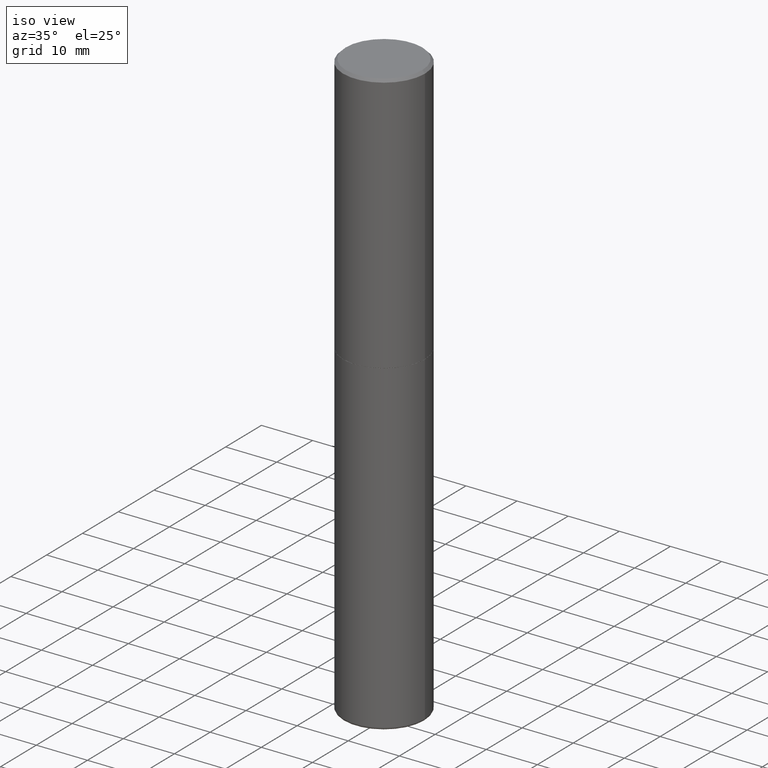
[diagram: clean part render]
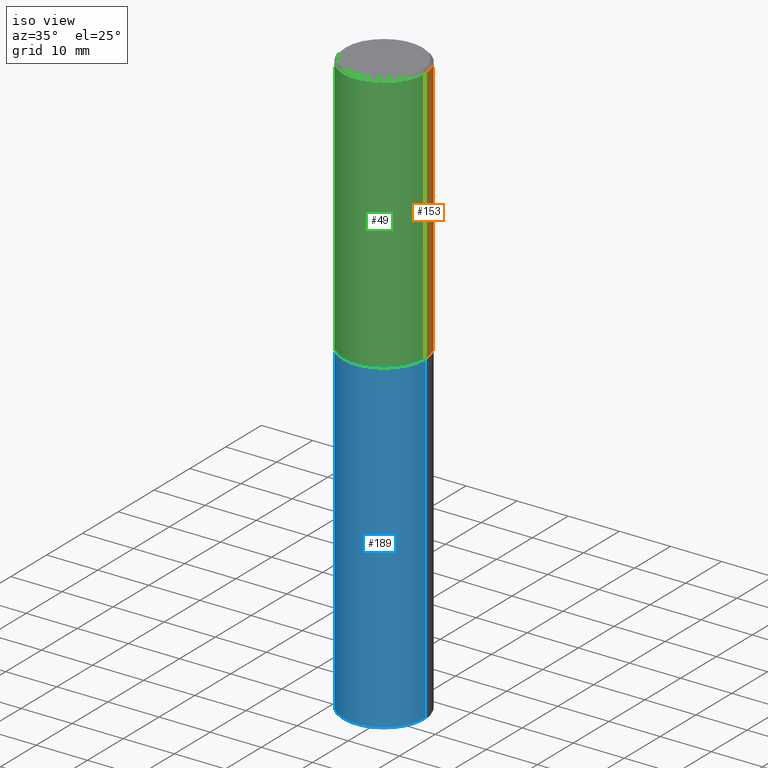
[diagram: same view with three faces highlighted in distinct colors, each labeled with its STEP entity id]
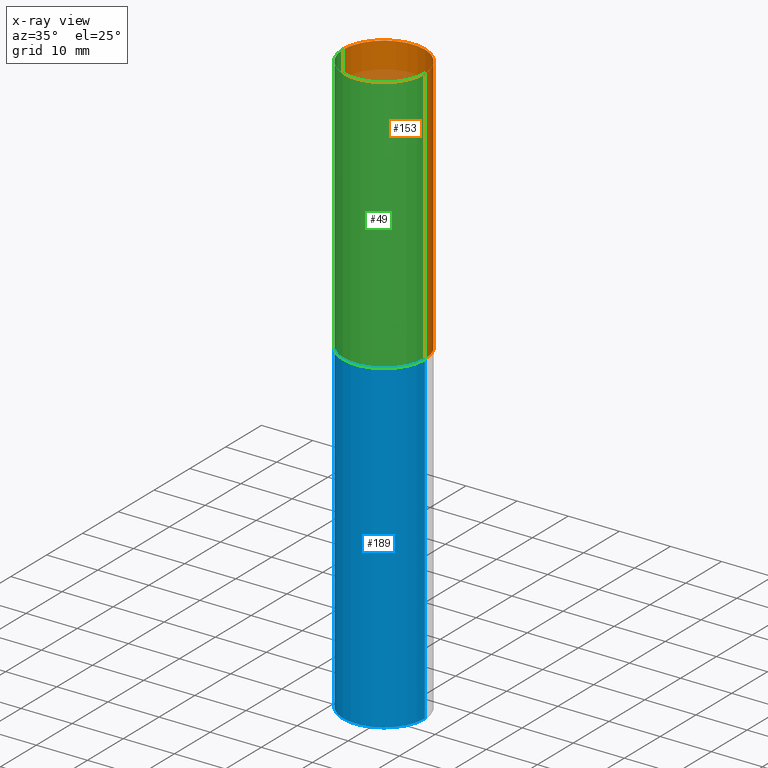
[diagram: x-ray of the same camera — body ghosted, the three highlighted faces saturated]
A machine part, iso view with three faces highlighted in distinct colors.
The next image is the same camera in x-ray (body ghosted, the three faces saturated) — at least one of them is partly hidden behind the body in this view.
Their STEP definitions:

[orange] entity #153 — the highlighted cylindrical surface (partial cylindrical patch) has radius 7.9997 mm, axis along (-0, 0, 1).
#6 = VERTEX_POINT ( 'NONE', #285 ) ;
#10 = AXIS2_PLACEMENT_3D ( 'NONE', #310, #337, #340 ) ;
#24 = DIRECTION ( 'NONE',  ( 1.000000000000000000, -6.982962677686265922E-15, 0.000000000000000000 ) ) ;
#44 = CIRCLE ( 'NONE', #10, 0.3149500000000002853 ) ;
#58 = AXIS2_PLACEMENT_3D ( 'NONE', #241, #85, #145 ) ;
#63 = ORIENTED_EDGE ( 'NONE', *, *, #315, .F. ) ;
#73 = LINE ( 'NONE', #333, #316 ) ;
#85 = DIRECTION ( 'NONE',  ( -2.445468806185136597E-29, 3.491481338843145583E-15, 1.000000000000000000 ) ) ;
#125 = ORIENTED_EDGE ( 'NONE', *, *, #390, .T. ) ;
#145 = DIRECTION ( 'NONE',  ( 1.000000000000000000, -6.982962677686266711E-15, 4.876176775795936353E-29 ) ) ;
#150 = DIRECTION ( 'NONE',  ( -2.445468806185136877E-29, 3.491481338843145188E-15, 1.000000000000000000 ) ) ;
#153 = ADVANCED_FACE ( 'NONE', ( #272 ), #271, .T. ) ;
#155 = VERTEX_POINT ( 'NONE', #418 ) ;
#167 = CARTESIAN_POINT ( 'NONE',  ( -0.3149499999999998967, 2.129454468560425784E-15, -0.02000000000000006981 ) ) ;
#171 = ORIENTED_EDGE ( 'NONE', *, *, #185, .F. ) ;
#185 = EDGE_CURVE ( 'NONE', #6, #395, #382, .T. ) ;
#200 = CARTESIAN_POINT ( 'NONE',  ( 0.3149499999999998967, -2.230543471175006266E-15, -0.02000000000000006981 ) ) ;
#204 = DIRECTION ( 'NONE',  ( -2.445468806185136597E-29, 3.491481338843145583E-15, 1.000000000000000000 ) ) ;
#206 = EDGE_CURVE ( 'NONE', #6, #155, #44, .T. ) ;
#241 = CARTESIAN_POINT ( 'NONE',  ( 0.000000000000000000, 0.000000000000000000, 0.000000000000000000 ) ) ;
#271 = CYLINDRICAL_SURFACE ( 'NONE', #58, 0.3149500000000000632 ) ;
#272 = FACE_OUTER_BOUND ( 'NONE', #360, .T. ) ;
#274 = CIRCLE ( 'NONE', #348, 0.3149499999999998967 ) ;
#285 = CARTESIAN_POINT ( 'NONE',  ( 0.3149500000000002853, -9.206337994261599363E-15, -2.006899999999999906 ) ) ;
#310 = CARTESIAN_POINT ( 'NONE',  ( 4.907811347132950267E-29, -7.007053898924307914E-15, -2.006899999999999906 ) ) ;
#313 = CARTESIAN_POINT ( 'NONE',  ( 4.890937612370289799E-31, -6.982962677686315028E-17, -0.02000000000000006981 ) ) ;
#315 = EDGE_CURVE ( 'NONE', #395, #397, #274, .T. ) ;
#316 = VECTOR ( 'NONE', #331, 39.37007874015748143 ) ;
#320 = CARTESIAN_POINT ( 'NONE',  ( 0.3149500000000000632, -2.199284095337290265E-15, 1.535751875536930410E-29 ) ) ;
#324 = VECTOR ( 'NONE', #150, 39.37007874015748143 ) ;
#331 = DIRECTION ( 'NONE',  ( -2.445468806185136877E-29, 3.491481338843145188E-15, 1.000000000000000000 ) ) ;
#333 = CARTESIAN_POINT ( 'NONE',  ( -0.3149500000000000632, 2.237854346276435985E-15, -1.549218606675782956E-29 ) ) ;
#337 = DIRECTION ( 'NONE',  ( -2.445468806185136597E-29, 3.491481338843145583E-15, 1.000000000000000000 ) ) ;
#340 = DIRECTION ( 'NONE',  ( 1.000000000000000000, -6.982962677686267499E-15, 0.000000000000000000 ) ) ;
#348 = AXIS2_PLACEMENT_3D ( 'NONE', #313, #204, #24 ) ;
#351 = ORIENTED_EDGE ( 'NONE', *, *, #206, .T. ) ;
#360 = EDGE_LOOP ( 'NONE', ( #351, #125, #63, #171 ) ) ;
#382 = LINE ( 'NONE', #320, #324 ) ;
#390 = EDGE_CURVE ( 'NONE', #155, #397, #73, .T. ) ;
#395 = VERTEX_POINT ( 'NONE', #200 ) ;
#397 = VERTEX_POINT ( 'NONE', #167 ) ;
#418 = CARTESIAN_POINT ( 'NONE',  ( -0.3149500000000002853, -1.300587416574145677E-15, -2.006899999999999906 ) ) ;

[blue] entity #189 — the highlighted cylindrical surface (partial cylindrical patch) has radius 7.9997 mm, axis along (-0, 0, 1).
#12 = CIRCLE ( 'NONE', #70, 0.3149500000000000077 ) ;
#31 = EDGE_CURVE ( 'NONE', #164, #228, #254, .T. ) ;
#32 = ORIENTED_EDGE ( 'NONE', *, *, #31, .F. ) ;
#33 = VERTEX_POINT ( 'NONE', #118 ) ;
#46 = DIRECTION ( 'NONE',  ( 1.000000000000000000, -6.982962677686268288E-15, 0.000000000000000000 ) ) ;
#54 = FACE_OUTER_BOUND ( 'NONE', #359, .T. ) ;
#59 = DIRECTION ( 'NONE',  ( -2.445468806185136877E-29, 3.491481338843145188E-15, 1.000000000000000000 ) ) ;
#68 = EDGE_CURVE ( 'NONE', #228, #33, #12, .T. ) ;
#70 = AXIS2_PLACEMENT_3D ( 'NONE', #277, #409, #406 ) ;
#88 = CARTESIAN_POINT ( 'NONE',  ( -0.3149500000000000077, 2.237854346276435590E-15, -1.549218606675782676E-29 ) ) ;
#92 = AXIS2_PLACEMENT_3D ( 'NONE', #147, #143, #273 ) ;
#106 = LINE ( 'NONE', #402, #154 ) ;
#107 = CARTESIAN_POINT ( 'NONE',  ( -0.3149500000000000077, -9.137042707540648986E-15, -2.007899999999999796 ) ) ;
#111 = EDGE_CURVE ( 'NONE', #325, #33, #106, .T. ) ;
#117 = CARTESIAN_POINT ( 'NONE',  ( -0.3149500000000000077, -1.350139438109458146E-14, -4.507900000000000240 ) ) ;
#118 = CARTESIAN_POINT ( 'NONE',  ( 0.3149500000000000077, -9.209829475600440793E-15, -2.007899999999999796 ) ) ;
#143 = DIRECTION ( 'NONE',  ( -2.445468806185136597E-29, 3.491481338843145583E-15, 1.000000000000000000 ) ) ;
#147 = CARTESIAN_POINT ( 'NONE',  ( 0.000000000000000000, 0.000000000000000000, 0.000000000000000000 ) ) ;
#154 = VECTOR ( 'NONE', #339, 39.37007874015748143 ) ;
#164 = VERTEX_POINT ( 'NONE', #117 ) ;
#168 = CIRCLE ( 'NONE', #222, 0.3149500000000000632 ) ;
#173 = CARTESIAN_POINT ( 'NONE',  ( 0.3149500000000000077, -1.793853282270830731E-14, -4.507900000000000240 ) ) ;
#189 = ADVANCED_FACE ( 'NONE', ( #54 ), #343, .T. ) ;
#215 = VECTOR ( 'NONE', #59, 39.37007874015748143 ) ;
#222 = AXIS2_PLACEMENT_3D ( 'NONE', #372, #410, #46 ) ;
#225 = ORIENTED_EDGE ( 'NONE', *, *, #111, .T. ) ;
#228 = VERTEX_POINT ( 'NONE', #107 ) ;
#254 = LINE ( 'NONE', #88, #215 ) ;
#273 = DIRECTION ( 'NONE',  ( 1.000000000000000000, -6.982962677686266711E-15, 4.876176775795936353E-29 ) ) ;
#277 = CARTESIAN_POINT ( 'NONE',  ( 4.910256815939135870E-29, -7.010545380263151710E-15, -2.007899999999999796 ) ) ;
#280 = ORIENTED_EDGE ( 'NONE', *, *, #68, .F. ) ;
#323 = EDGE_CURVE ( 'NONE', #164, #325, #168, .T. ) ;
#325 = VERTEX_POINT ( 'NONE', #173 ) ;
#339 = DIRECTION ( 'NONE',  ( -2.445468806185136877E-29, 3.491481338843145188E-15, 1.000000000000000000 ) ) ;
#343 = CYLINDRICAL_SURFACE ( 'NONE', #92, 0.3149500000000000077 ) ;
#359 = EDGE_LOOP ( 'NONE', ( #32, #377, #225, #280 ) ) ;
#372 = CARTESIAN_POINT ( 'NONE',  ( 1.102392883140197736E-28, -1.573924872737101586E-14, -4.507900000000000240 ) ) ;
#377 = ORIENTED_EDGE ( 'NONE', *, *, #323, .T. ) ;
#402 = CARTESIAN_POINT ( 'NONE',  ( 0.3149500000000000077, -2.199284095337289871E-15, 1.535751875536930130E-29 ) ) ;
#406 = DIRECTION ( 'NONE',  ( 1.000000000000000000, -6.982962677686263555E-15, 0.000000000000000000 ) ) ;
#409 = DIRECTION ( 'NONE',  ( -2.445468806185136597E-29, 3.491481338843145583E-15, 1.000000000000000000 ) ) ;
#410 = DIRECTION ( 'NONE',  ( -2.445468806185136597E-29, 3.491481338843145583E-15, 1.000000000000000000 ) ) ;

[green] entity #49 — the highlighted cylindrical surface (partial cylindrical patch) has radius 7.9997 mm, axis along (-0, 0, 1).
#2 = ORIENTED_EDGE ( 'NONE', *, *, #283, .F. ) ;
#6 = VERTEX_POINT ( 'NONE', #285 ) ;
#14 = DIRECTION ( 'NONE',  ( 1.000000000000000000, -6.982962677686267499E-15, 0.000000000000000000 ) ) ;
#17 = EDGE_LOOP ( 'NONE', ( #35, #230, #381, #2 ) ) ;
#35 = ORIENTED_EDGE ( 'NONE', *, *, #390, .F. ) ;
#42 = DIRECTION ( 'NONE',  ( -2.445468806185136597E-29, 3.491481338843145583E-15, 1.000000000000000000 ) ) ;
#49 = ADVANCED_FACE ( 'NONE', ( #119 ), #220, .T. ) ;
#73 = LINE ( 'NONE', #333, #316 ) ;
#86 = DIRECTION ( 'NONE',  ( -2.445468806185136597E-29, 3.491481338843145583E-15, 1.000000000000000000 ) ) ;
#108 = CIRCLE ( 'NONE', #188, 0.3149499999999998967 ) ;
#110 = DIRECTION ( 'NONE',  ( 1.000000000000000000, -6.982962677686266711E-15, 4.876176775795936353E-29 ) ) ;
#119 = FACE_OUTER_BOUND ( 'NONE', #17, .T. ) ;
#128 = CARTESIAN_POINT ( 'NONE',  ( 4.907811347132950267E-29, -7.007053898924307914E-15, -2.006899999999999906 ) ) ;
#150 = DIRECTION ( 'NONE',  ( -2.445468806185136877E-29, 3.491481338843145188E-15, 1.000000000000000000 ) ) ;
#155 = VERTEX_POINT ( 'NONE', #418 ) ;
#167 = CARTESIAN_POINT ( 'NONE',  ( -0.3149499999999998967, 2.129454468560425784E-15, -0.02000000000000006981 ) ) ;
#185 = EDGE_CURVE ( 'NONE', #6, #395, #382, .T. ) ;
#188 = AXIS2_PLACEMENT_3D ( 'NONE', #378, #86, #405 ) ;
#195 = CIRCLE ( 'NONE', #345, 0.3149500000000002853 ) ;
#200 = CARTESIAN_POINT ( 'NONE',  ( 0.3149499999999998967, -2.230543471175006266E-15, -0.02000000000000006981 ) ) ;
#220 = CYLINDRICAL_SURFACE ( 'NONE', #338, 0.3149500000000000632 ) ;
#230 = ORIENTED_EDGE ( 'NONE', *, *, #413, .T. ) ;
#283 = EDGE_CURVE ( 'NONE', #397, #395, #108, .T. ) ;
#285 = CARTESIAN_POINT ( 'NONE',  ( 0.3149500000000002853, -9.206337994261599363E-15, -2.006899999999999906 ) ) ;
#316 = VECTOR ( 'NONE', #331, 39.37007874015748143 ) ;
#320 = CARTESIAN_POINT ( 'NONE',  ( 0.3149500000000000632, -2.199284095337290265E-15, 1.535751875536930410E-29 ) ) ;
#324 = VECTOR ( 'NONE', #150, 39.37007874015748143 ) ;
#331 = DIRECTION ( 'NONE',  ( -2.445468806185136877E-29, 3.491481338843145188E-15, 1.000000000000000000 ) ) ;
#333 = CARTESIAN_POINT ( 'NONE',  ( -0.3149500000000000632, 2.237854346276435985E-15, -1.549218606675782956E-29 ) ) ;
#338 = AXIS2_PLACEMENT_3D ( 'NONE', #416, #346, #110 ) ;
#345 = AXIS2_PLACEMENT_3D ( 'NONE', #128, #42, #14 ) ;
#346 = DIRECTION ( 'NONE',  ( -2.445468806185136597E-29, 3.491481338843145583E-15, 1.000000000000000000 ) ) ;
#378 = CARTESIAN_POINT ( 'NONE',  ( 4.890937612370289799E-31, -6.982962677686315028E-17, -0.02000000000000006981 ) ) ;
#381 = ORIENTED_EDGE ( 'NONE', *, *, #185, .T. ) ;
#382 = LINE ( 'NONE', #320, #324 ) ;
#390 = EDGE_CURVE ( 'NONE', #155, #397, #73, .T. ) ;
#395 = VERTEX_POINT ( 'NONE', #200 ) ;
#397 = VERTEX_POINT ( 'NONE', #167 ) ;
#405 = DIRECTION ( 'NONE',  ( 1.000000000000000000, -6.982962677686265922E-15, 0.000000000000000000 ) ) ;
#413 = EDGE_CURVE ( 'NONE', #155, #6, #195, .T. ) ;
#416 = CARTESIAN_POINT ( 'NONE',  ( 0.000000000000000000, 0.000000000000000000, 0.000000000000000000 ) ) ;
#418 = CARTESIAN_POINT ( 'NONE',  ( -0.3149500000000002853, -1.300587416574145677E-15, -2.006899999999999906 ) ) ;